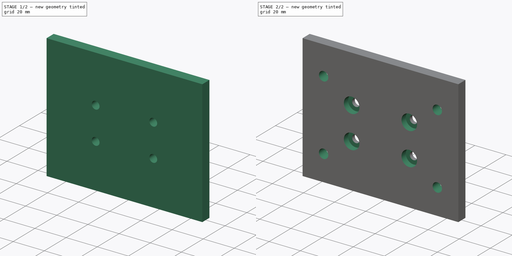
[diagram: build sequence overview — one tinted view per stage of 2, left to right]
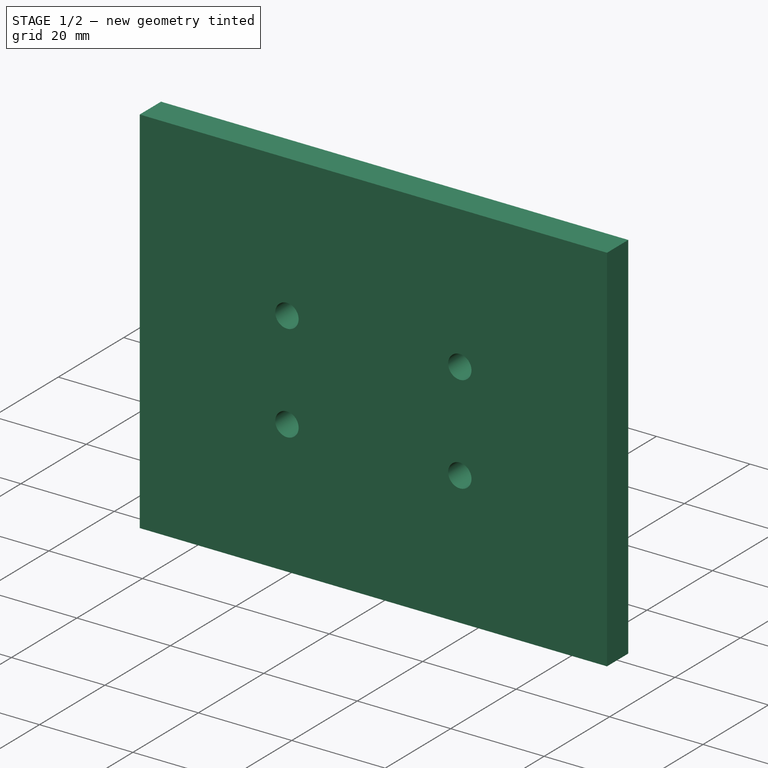
[diagram: stage 1 of 2 — iso view after this stage's code; geometry added in this stage tinted green]
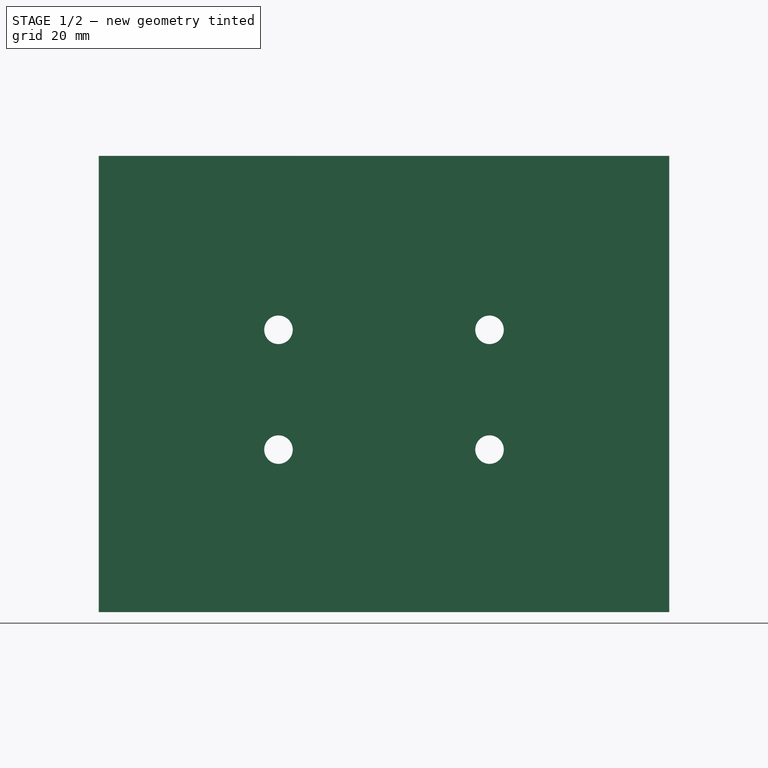
[diagram: stage 1 of 2 — front view after this stage's code; geometry added in this stage tinted green]
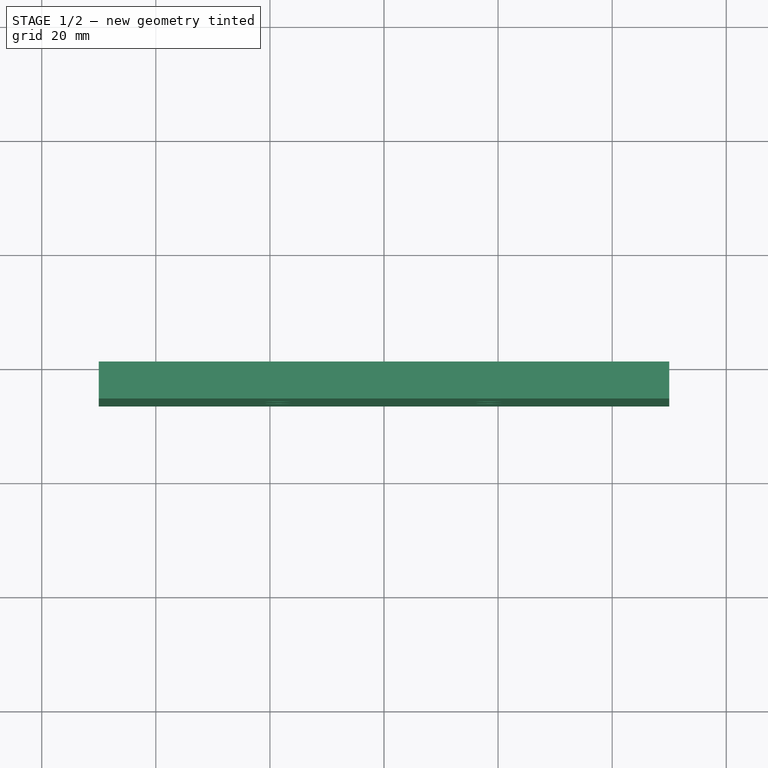
[diagram: stage 1 of 2 — top view after this stage's code; geometry added in this stage tinted green]
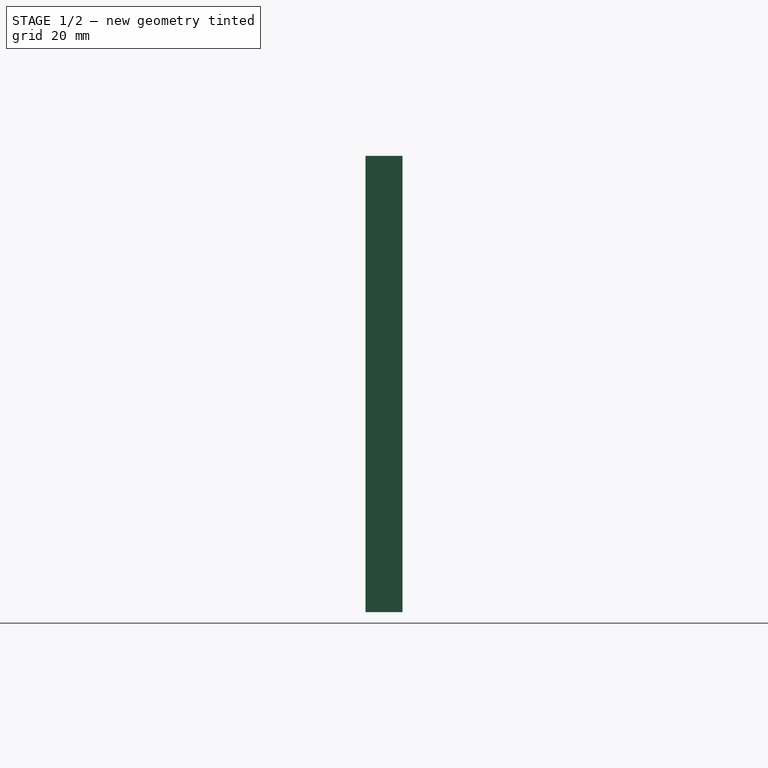
[diagram: stage 1 of 2 — right view after this stage's code; geometry added in this stage tinted green]
FCSTD DOCUMENT  (FreeCAD 0.15R4671 (Git))
Label: holder_ballnut_gantry
License: CC-BY 3.0
LicenseURL: http://creativecommons.org/licenses/by/3.0/
objects: Drawing::FeatureViewPython×12, Sketcher::SketchObject×4, PartDesign::Pocket×3, PartDesign::Pad×1, Drawing::FeatureViewPart×1, Drawing::FeaturePage×1
note: 12 computed .brp shape members not serialized (recipe doc carries the construction recipe); baked Part::Feature solids carry a one-line shape summary decoded from their .brp

FEATURE [Sketcher::SketchObject] Sketch001
  Placement = pos=(0,0,0) rot=(1,0,0;1.5708rad)
  sketch-geometry (4):
    g0: LineSegment StartX=-50 StartY=60.5 StartZ=0 EndX=50 EndY=60.5 EndZ=0
    g1: LineSegment StartX=50 StartY=60.5 StartZ=0 EndX=50 EndY=-19.5 EndZ=0
    g2: LineSegment StartX=50 StartY=-19.5 StartZ=0 EndX=-50 EndY=-19.5 EndZ=0
    g3: LineSegment StartX=-50 StartY=-19.5 StartZ=0 EndX=-50 EndY=60.5 EndZ=0
  constraints (12):
    c: Coincident(g0,g1)
    c: Coincident(g1,g2)
    c: Coincident(g2,g3)
    c: Coincident(g3,g0)
    c: Horizontal(g0)
    c: Horizontal(g2)
    c: Vertical(g1)
    c: Vertical(g3)
    c: DistanceY(g1,g0) = 80
    c: DistanceX(g2,g1) = 100
    c: DistanceX(g-1,g2) = -50
    c: Distance(g-1,g2) = 19.5
FEATURE [PartDesign::Pad] Pad
  Length = 6.5
  Length2 = 792
  Placement = pos=(0,0,0) rot=(1,0,0;1.5708rad)
  Sketch = -> Sketch001
  Type = 0
FEATURE [Sketcher::SketchObject] Sketch004
  Placement = pos=(0,0,0) rot=(-1,0,0;1.5708rad)
  Support = -> Pad [Face5]
  sketch-geometry (4):
    g0: Circle CenterX=-18.5 CenterY=-9 CenterZ=0 NormalX=0 NormalY=0 NormalZ=1 Radius=2.5
    g1: Circle CenterX=18.5 CenterY=-9 CenterZ=0 NormalX=0 NormalY=0 NormalZ=1 Radius=2.5
    g2: Circle CenterX=-18.5 CenterY=-30 CenterZ=0 NormalX=0 NormalY=0 NormalZ=1 Radius=2.5
    g3: Circle CenterX=18.5 CenterY=-30 CenterZ=0 NormalX=0 NormalY=0 NormalZ=1 Radius=2.5
  constraints (12):
    c: Radius(g0) = 2.5
    c: DistanceY(g-1,g0) = -9
    c: DistanceX(g-2,g0) = -18.5
    c: Radius(g1) = 2.5
    c: DistanceY(g-1,g1) = -9
    c: Radius(g2) = 2.5
    c: DistanceX(g-2,g2) = -18.5
    c: DistanceX(g-2,g1) = 18.5
    c: Radius(g3) = 2.5
    c: DistanceX(g-2,g3) = 18.5
    c: DistanceY(g-1,g3) = -30
    c: DistanceY(g-1,g2) = -30
FEATURE [PartDesign::Pocket] Pocket
  Length = 10
  Placement = pos=(0,0,0) rot=(1,0,0;1.5708rad)
  Sketch = -> Sketch004
  Type = 0
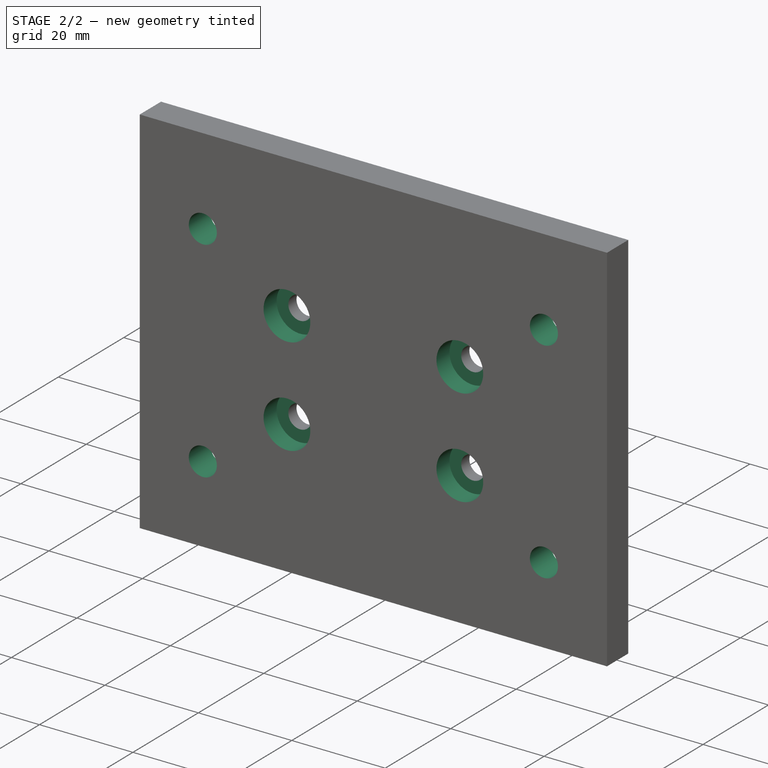
[diagram: stage 2 of 2 — iso view after this stage's code; geometry added in this stage tinted green]
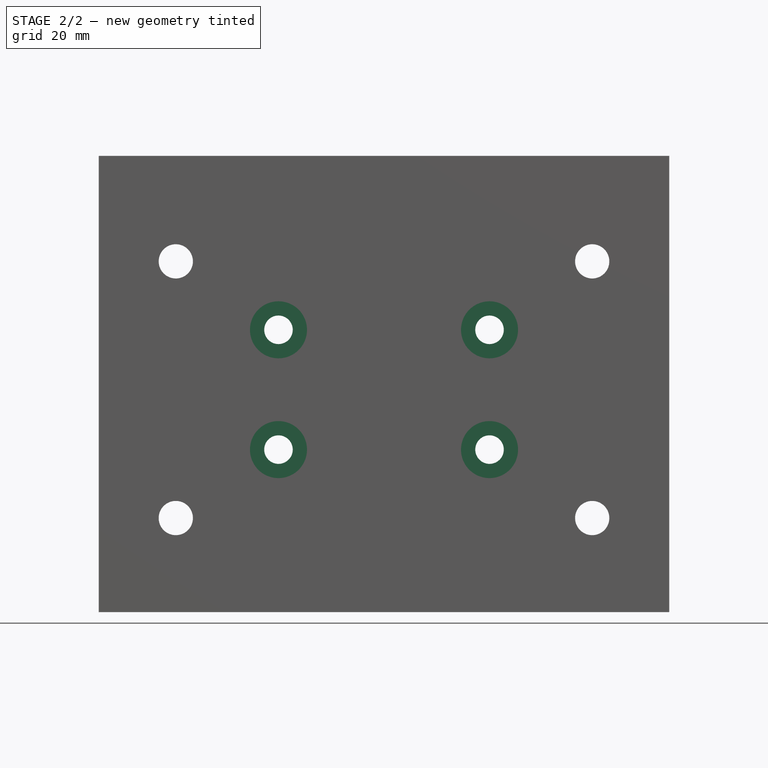
[diagram: stage 2 of 2 — front view after this stage's code; geometry added in this stage tinted green]
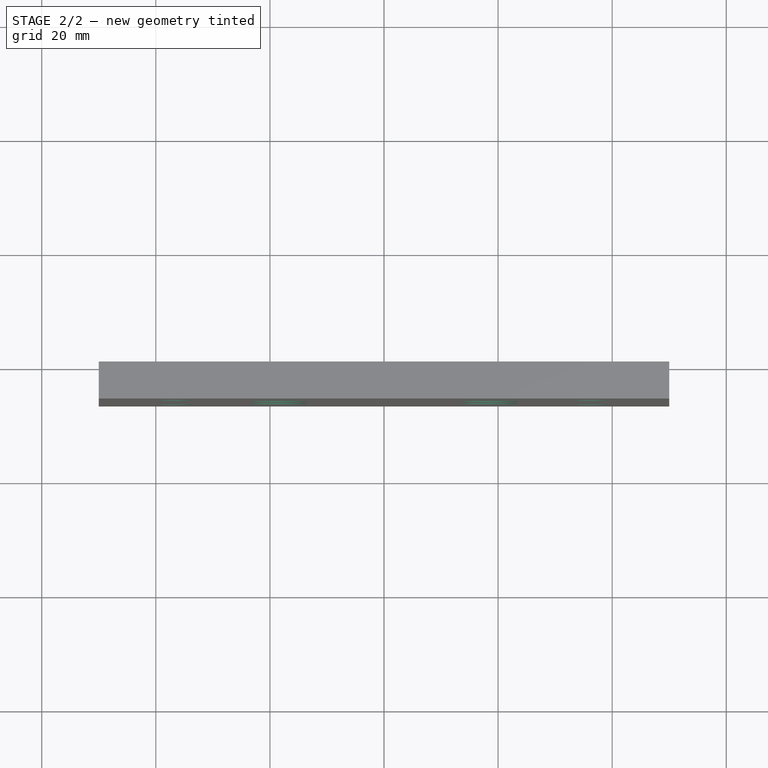
[diagram: stage 2 of 2 — top view after this stage's code; geometry added in this stage tinted green]
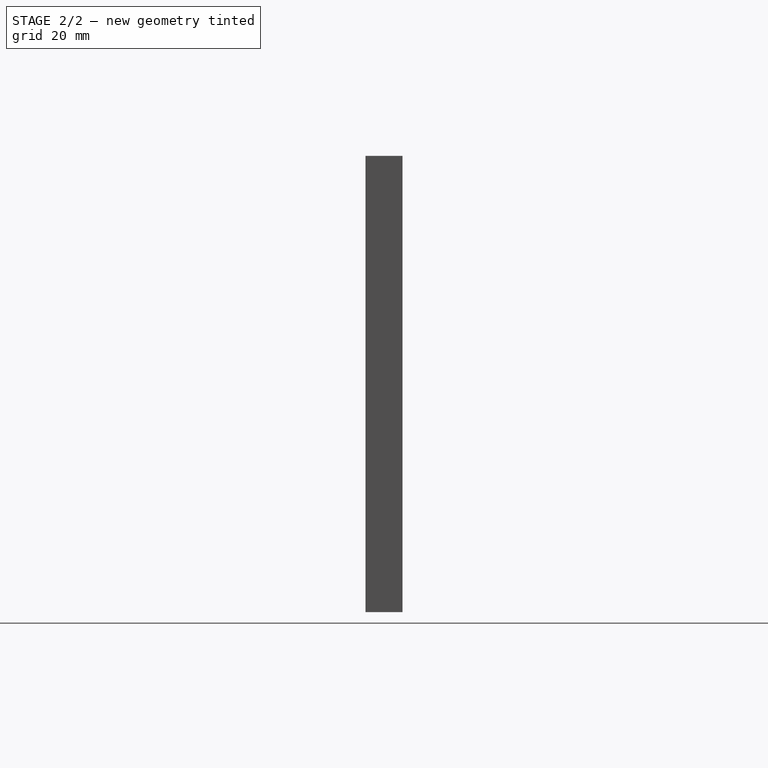
[diagram: stage 2 of 2 — right view after this stage's code; geometry added in this stage tinted green]
FEATURE [Sketcher::SketchObject] Sketch
  Placement = pos=(0,-6.5,0) rot=(1,0,0;1.5708rad)
  Support = -> Pocket [Face5]
  sketch-geometry (4):
    g0: Circle CenterX=18.5 CenterY=9 CenterZ=0 NormalX=0 NormalY=0 NormalZ=1 Radius=5
    g1: Circle CenterX=18.5 CenterY=30 CenterZ=0 NormalX=0 NormalY=0 NormalZ=1 Radius=5
    g2: Circle CenterX=-18.5 CenterY=9 CenterZ=0 NormalX=0 NormalY=0 NormalZ=1 Radius=5
    g3: Circle CenterX=-18.5 CenterY=30 CenterZ=0 NormalX=0 NormalY=0 NormalZ=1 Radius=5
  constraints (12):
    c: Radius(g0) = 5
    c: DistanceY(g-1,g0) = 9
    c: DistanceX(g-1,g0) = 18.5
    c: Radius(g1) = 5
    c: DistanceY(g-1,g1) = 30
    c: DistanceX(g-1,g1) = 18.5
    c: Radius(g2) = 5
    c: DistanceY(g-1,g2) = 9
    c: DistanceX(g-1,g2) = -18.5
    c: Radius(g3) = 5
    c: DistanceX(g-1,g3) = -18.5
    c: DistanceY(g-1,g3) = 30
FEATURE [PartDesign::Pocket] Pocket001
  Length = 4
  Placement = pos=(0,0,0) rot=(1,0,0;1.5708rad)
  Sketch = -> Sketch
  Type = 0
FEATURE [Sketcher::SketchObject] Sketch005
  Placement = pos=(0,-6.5,0) rot=(1,0,0;1.5708rad)
  Support = -> Pocket001 [Face5]
  sketch-geometry (4):
    g0: Circle CenterX=36.5 CenterY=-3 CenterZ=0 NormalX=0 NormalY=0 NormalZ=1 Radius=3
    g1: Circle CenterX=36.5 CenterY=42 CenterZ=0 NormalX=0 NormalY=0 NormalZ=1 Radius=3
    g2: Circle CenterX=-36.5 CenterY=-3 CenterZ=0 NormalX=0 NormalY=0 NormalZ=1 Radius=3
    g3: Circle CenterX=-36.5 CenterY=42 CenterZ=0 NormalX=0 NormalY=0 NormalZ=1 Radius=3
  constraints (12):
    c: Radius(g0) = 3
    c: DistanceX(g-1,g0) = 36.5
    c: DistanceY(g-1,g0) = -3
    c: Radius(g1) = 3
    c: DistanceX(g-1,g1) = 36.5
    c: DistanceY(g-1,g1) = 42
    c: Radius(g2) = 3
    c: DistanceX(g-1,g2) = -36.5
    c: DistanceY(g-1,g2) = -3
    c: Radius(g3) = 3
    c: DistanceX(g-1,g3) = -36.5
    c: DistanceY(g-1,g3) = 42
FEATURE [PartDesign::Pocket] Pocket002
  Length = 10
  Placement = pos=(0,0,0) rot=(1,0,0;1.5708rad)
  Sketch = -> Sketch005
  Type = 0
FEATURE [Drawing::FeatureViewPart] Ortho  label="Ortho_0_0"
  Direction = (0,0,-1)
  HiddenWidth = 0.15
  LineWidth = 0.35
  Rotation = 180
  Scale = 2
  ShowHiddenLines = true
  ShowSmoothLines = false
  Source = -> Pocket002
  Tolerance = 0.05
  ViewResult = <blob: 15162 chars omitted>
  Visible = true
  X = 148.5
  Y = 88
FEATURE [Drawing::FeatureViewPython] dim001  # drawing view (typed FeaturePython)
  Rotation = 0
  ViewResult = <g> \n  <line x1="48.500000" y1="90.000000" x2="48.500000" y2="112.092430" style="stroke:rgb(0,0,255);stroke-width:0.50" />\n<line x1="248.500000" y1="90.000000" x2="248.500000" y2="112.092430" style="stroke:rgb(0,0,255);stroke-width:0.50" />\n<line x1="48.500000" y1="111.092430" x2="248.500000" y2="111.092430" style="stroke:rgb(0,0,255);stroke-width:0.50" /> \n  <polygon points="248.500000,111.092430 245.500000,110.092430 244.500000,111.092430 245.500000,112.092430" style="fill:rgb(0,0,255);stroke:rgb(0,0,255);stroke-width:0" /><polygon points="48.500000,111.092430 51.500000,112.092430 52.500000,111.092430 51.500000,110.092430" style="fill:rgb(0,0,255);stroke:rgb(0,0,255);stroke-width:0" /> \n  <text x="148.500000" y="109.092430" font-family="inherit" font-size="3.6" fill="rgb(0,0,255)" text-anchor="middle" transform="rotate(-0.000000 148.500000,109.092430)" >100</text> </g>
  Visible = true
  X = 0
  Y = 0
  arrowL1 = 3
  arrowL2 = 1
  arrowW = 2
  arrow_scheme = 0
  autoPlaceOffset = 2
  autoPlaceText = true
  click1_x = 250.122
  click1_y = 111.092
  click2_x = 250.122
  click2_y = 111.092
  comma_decimal_place = false
  dimension_line_overshoot = 1
  gap_datum_points = 2
  halfDimension_linear = false
  lineColor = rgb(0,0,255)
  strokeWidth = 0.5
  textFormat_linear = %(value)3.3f
  textRenderer_color = rgb(0,0,255)
  textRenderer_family = inherit
  textRenderer_size = 3.6
  unit_custom_scale = 1
  unit_scheme = 0
FEATURE [Drawing::FeatureViewPython] dim002  # drawing view (typed FeaturePython)
  Rotation = 0
  ViewResult = <g> \n  <line x1="46.500000" y1="75.000000" x2="34.825665" y2="75.000000" style="stroke:rgb(0,0,255);stroke-width:0.50" />\n<line x1="46.500000" y1="88.000000" x2="34.825665" y2="88.000000" style="stroke:rgb(0,0,255);stroke-width:0.50" />\n<line x1="35.825665" y1="75.000000" x2="35.825665" y2="88.000000" style="stroke:rgb(0,0,255);stroke-width:0.50" /> \n  <polygon points="35.825665,88.000000 36.825665,85.000000 35.825665,84.000000 34.825665,85.000000" style="fill:rgb(0,0,255);stroke:rgb(0,0,255);stroke-width:0" /><polygon points="35.825665,75.000000 34.825665,78.000000 35.825665,79.000000 36.825665,78.000000" style="fill:rgb(0,0,255);stroke:rgb(0,0,255);stroke-width:0" /> \n  <text x="33.825665" y="81.500000" font-family="inherit" font-size="3.6" fill="rgb(0,0,255)" text-anchor="middle" transform="rotate(-90.000000 33.825665,81.500000)" >6.5</text> </g>
  Visible = true
  X = 0
  Y = 0
  arrowL1 = 3
  arrowL2 = 1
  arrowW = 2
  arrow_scheme = 0
  autoPlaceOffset = 2
  autoPlaceText = true
  click1_x = 35.8257
  click1_y = 92.6866
  click2_x = 35.8257
  click2_y = 92.6866
  comma_decimal_place = false
  dimension_line_overshoot = 1
  gap_datum_points = 2
  halfDimension_linear = false
  lineColor = rgb(0,0,255)
  strokeWidth = 0.5
  textFormat_linear = %(value)3.3f
  textRenderer_color = rgb(0,0,255)
  textRenderer_family = inherit
  textRenderer_size = 3.6
  unit_custom_scale = 1
  unit_scheme = 0
FEATURE [Drawing::FeatureViewPython] dim003  # drawing view (typed FeaturePython)
  Rotation = 0
  ViewResult = <g> \n  <line x1="101.500000" y1="73.000000" x2="101.500000" y2="63.678462" style="stroke:rgb(0,0,255);stroke-width:0.50" />\n<line x1="121.500000" y1="73.000000" x2="121.500000" y2="63.678462" style="stroke:rgb(0,0,255);stroke-width:0.50" />\n<line x1="101.500000" y1="64.678462" x2="121.500000" y2="64.678462" style="stroke:rgb(0,0,255);stroke-width:0.50" /> \n  <polygon points="121.500000,64.678462 118.500000,63.678462 117.500000,64.678462 118.500000,65.678462" style="fill:rgb(0,0,255);stroke:rgb(0,0,255);stroke-width:0" /><polygon points="101.500000,64.678462 104.500000,65.678462 105.500000,64.678462 104.500000,63.678462" style="fill:rgb(0,0,255);stroke:rgb(0,0,255);stroke-width:0" /> \n  <text x="111.500000" y="62.678462" font-family="inherit" font-size="3.6" fill="rgb(0,0,255)" text-anchor="middle" transform="rotate(0.000000 111.500000,62.678462)" >10</text> </g>
  Visible = true
  X = 0
  Y = 0
  arrowL1 = 3
  arrowL2 = 1
  arrowW = 2
  arrow_scheme = 0
  autoPlaceOffset = 2
  autoPlaceText = true
  click1_x = 124.582
  click1_y = 64.6785
  click2_x = 124.582
  click2_y = 64.6785
  comma_decimal_place = false
  dimension_line_overshoot = 1
  gap_datum_points = 2
  halfDimension_linear = false
  lineColor = rgb(0,0,255)
  strokeWidth = 0.5
  textFormat_linear = %(value)3.3f
  textRenderer_color = rgb(0,0,255)
  textRenderer_family = inherit
  textRenderer_size = 3.6
  unit_custom_scale = 1
  unit_scheme = 0
FEATURE [Drawing::FeatureViewPython] dim004  # drawing view (typed FeaturePython)
  Rotation = 0
  ViewResult = <g> \n  <line x1="175.500000" y1="73.000000" x2="175.500000" y2="63.759539" style="stroke:rgb(0,0,255);stroke-width:0.50" />\n<line x1="195.500000" y1="73.000000" x2="195.500000" y2="63.759539" style="stroke:rgb(0,0,255);stroke-width:0.50" />\n<line x1="175.500000" y1="64.759539" x2="195.500000" y2="64.759539" style="stroke:rgb(0,0,255);stroke-width:0.50" /> \n  <polygon points="195.500000,64.759539 192.500000,63.759539 191.500000,64.759539 192.500000,65.759539" style="fill:rgb(0,0,255);stroke:rgb(0,0,255);stroke-width:0" /><polygon points="175.500000,64.759539 178.500000,65.759539 179.500000,64.759539 178.500000,63.759539" style="fill:rgb(0,0,255);stroke:rgb(0,0,255);stroke-width:0" /> \n  <text x="185.500000" y="62.759539" font-family="inherit" font-size="3.6" fill="rgb(0,0,255)" text-anchor="middle" transform="rotate(0.000000 185.500000,62.759539)" >10</text> </g>
  Visible = true
  X = 0
  Y = 0
  arrowL1 = 3
  arrowL2 = 1
  arrowW = 2
  arrow_scheme = 0
  autoPlaceOffset = 2
  autoPlaceText = true
  click1_x = 189.05
  click1_y = 64.7595
  click2_x = 189.05
  click2_y = 64.7595
  comma_decimal_place = false
  dimension_line_overshoot = 1
  gap_datum_points = 2
  halfDimension_linear = false
  lineColor = rgb(0,0,255)
  strokeWidth = 0.5
  textFormat_linear = %(value)3.3f
  textRenderer_color = rgb(0,0,255)
  textRenderer_family = inherit
  textRenderer_size = 3.6
  unit_custom_scale = 1
  unit_scheme = 0
FEATURE [Drawing::FeatureViewPython] dim005  # drawing view (typed FeaturePython)
  Rotation = 0
  ViewResult = <g> \n  <line x1="69.500000" y1="73.000000" x2="69.500000" y2="63.285614" style="stroke:rgb(0,0,255);stroke-width:0.50" />\n<line x1="81.500000" y1="73.000000" x2="81.500000" y2="63.285614" style="stroke:rgb(0,0,255);stroke-width:0.50" />\n<line x1="69.500000" y1="64.285614" x2="81.500000" y2="64.285614" style="stroke:rgb(0,0,255);stroke-width:0.50" /> \n  <polygon points="81.500000,64.285614 78.500000,63.285614 77.500000,64.285614 78.500000,65.285614" style="fill:rgb(0,0,255);stroke:rgb(0,0,255);stroke-width:0" /><polygon points="69.500000,64.285614 72.500000,65.285614 73.500000,64.285614 72.500000,63.285614" style="fill:rgb(0,0,255);stroke:rgb(0,0,255);stroke-width:0" /> \n  <text x="75.500000" y="62.285614" font-family="inherit" font-size="3.6" fill="rgb(0,0,255)" text-anchor="middle" transform="rotate(0.000000 75.500000,62.285614)" >6</text> </g>
  Visible = true
  X = 0
  Y = 0
  arrowL1 = 3
  arrowL2 = 1
  arrowW = 2
  arrow_scheme = 0
  autoPlaceOffset = 2
  autoPlaceText = true
  click1_x = 80.4143
  click1_y = 64.2856
  click2_x = 80.4143
  click2_y = 64.2856
  comma_decimal_place = false
  dimension_line_overshoot = 1
  gap_datum_points = 2
  halfDimension_linear = false
  lineColor = rgb(0,0,255)
  strokeWidth = 0.5
  textFormat_linear = %(value)3.3f
  textRenderer_color = rgb(0,0,255)
  textRenderer_family = inherit
  textRenderer_size = 3.6
  unit_custom_scale = 1
  unit_scheme = 0
FEATURE [Drawing::FeatureViewPython] dim006  # drawing view (typed FeaturePython)
  Rotation = 0
  ViewResult = <g> \n  <line x1="215.500000" y1="73.000000" x2="215.500000" y2="63.796257" style="stroke:rgb(0,0,255);stroke-width:0.50" />\n<line x1="227.500000" y1="73.000000" x2="227.500000" y2="63.796257" style="stroke:rgb(0,0,255);stroke-width:0.50" />\n<line x1="215.500000" y1="64.796257" x2="227.500000" y2="64.796257" style="stroke:rgb(0,0,255);stroke-width:0.50" /> \n  <polygon points="227.500000,64.796257 224.500000,63.796257 223.500000,64.796257 224.500000,65.796257" style="fill:rgb(0,0,255);stroke:rgb(0,0,255);stroke-width:0" /><polygon points="215.500000,64.796257 218.500000,65.796257 219.500000,64.796257 218.500000,63.796257" style="fill:rgb(0,0,255);stroke:rgb(0,0,255);stroke-width:0" /> \n  <text x="221.500000" y="62.796257" font-family="inherit" font-size="3.6" fill="rgb(0,0,255)" text-anchor="middle" transform="rotate(0.000000 221.500000,62.796257)" >6</text> </g>
  Visible = true
  X = 0
  Y = 0
  arrowL1 = 3
  arrowL2 = 1
  arrowW = 2
  arrow_scheme = 0
  autoPlaceOffset = 2
  autoPlaceText = true
  click1_x = 224.08
  click1_y = 64.7963
  click2_x = 224.08
  click2_y = 64.7963
  comma_decimal_place = false
  dimension_line_overshoot = 1
  gap_datum_points = 2
  halfDimension_linear = false
  lineColor = rgb(0,0,255)
  strokeWidth = 0.5
  textFormat_linear = %(value)3.3f
  textRenderer_color = rgb(0,0,255)
  textRenderer_family = inherit
  textRenderer_size = 3.6
  unit_custom_scale = 1
  unit_scheme = 0
FEATURE [Drawing::FeatureViewPython] dim007  # drawing view (typed FeaturePython)
  Rotation = 0
  ViewResult = <g> \n  <line x1="123.500000" y1="75.000000" x2="132.970274" y2="75.000000" style="stroke:rgb(0,0,255);stroke-width:0.50" />\n<line x1="123.500000" y1="83.000000" x2="132.970274" y2="83.000000" style="stroke:rgb(0,0,255);stroke-width:0.50" />\n<line x1="131.970274" y1="75.000000" x2="131.970274" y2="83.000000" style="stroke:rgb(0,0,255);stroke-width:0.50" /> \n  <polygon points="131.970274,83.000000 130.970274,86.000000 131.970274,87.000000 132.970274,86.000000" style="fill:rgb(0,0,255);stroke:rgb(0,0,255);stroke-width:0" /><polygon points="131.970274,75.000000 132.970274,72.000000 131.970274,71.000000 130.970274,72.000000" style="fill:rgb(0,0,255);stroke:rgb(0,0,255);stroke-width:0" /> \n  <text x="129.970274" y="79.000000" font-family="inherit" font-size="3.6" fill="rgb(0,0,255)" text-anchor="middle" transform="rotate(-90.000000 129.970274,79.000000)" >4</text> </g>
  Visible = true
  X = 0
  Y = 0
  arrowL1 = 3
  arrowL2 = 1
  arrowW = 2
  arrow_scheme = 0
  autoPlaceOffset = 2
  autoPlaceText = true
  click1_x = 131.97
  click1_y = 80.5622
  click2_x = 131.97
  click2_y = 80.5622
  comma_decimal_place = false
  dimension_line_overshoot = 1
  gap_datum_points = 2
  halfDimension_linear = false
  lineColor = rgb(0,0,255)
  strokeWidth = 0.5
  textFormat_linear = %(value)3.3f
  textRenderer_color = rgb(0,0,255)
  textRenderer_family = inherit
  textRenderer_size = 3.6
  unit_custom_scale = 1
  unit_scheme = 0
FEATURE [Drawing::FeatureViewPython] dim008  # drawing view (typed FeaturePython)
  Rotation = 0
  ViewResult = <g> \n  <line x1="173.500000" y1="75.000000" x2="165.644816" y2="75.000000" style="stroke:rgb(0,0,255);stroke-width:0.50" />\n<line x1="173.500000" y1="83.000000" x2="165.644816" y2="83.000000" style="stroke:rgb(0,0,255);stroke-width:0.50" />\n<line x1="166.644816" y1="75.000000" x2="166.644816" y2="83.000000" style="stroke:rgb(0,0,255);stroke-width:0.50" /> \n  <polygon points="166.644816,83.000000 165.644816,86.000000 166.644816,87.000000 167.644816,86.000000" style="fill:rgb(0,0,255);stroke:rgb(0,0,255);stroke-width:0" /><polygon points="166.644816,75.000000 167.644816,72.000000 166.644816,71.000000 165.644816,72.000000" style="fill:rgb(0,0,255);stroke:rgb(0,0,255);stroke-width:0" /> \n  <text x="164.644816" y="79.000000" font-family="inherit" font-size="3.6" fill="rgb(0,0,255)" text-anchor="middle" transform="rotate(-90.000000 164.644816,79.000000)" >4</text> </g>
  Visible = true
  X = 0
  Y = 0
  arrowL1 = 3
  arrowL2 = 1
  arrowW = 2
  arrow_scheme = 0
  autoPlaceOffset = 2
  autoPlaceText = true
  click1_x = 166.645
  click1_y = 81.7698
  click2_x = 166.645
  click2_y = 81.7698
  comma_decimal_place = false
  dimension_line_overshoot = 1
  gap_datum_points = 2
  halfDimension_linear = false
  lineColor = rgb(0,0,255)
  strokeWidth = 0.5
  textFormat_linear = %(value)3.3f
  textRenderer_color = rgb(0,0,255)
  textRenderer_family = inherit
  textRenderer_size = 3.6
  unit_custom_scale = 1
  unit_scheme = 0
FEATURE [Drawing::FeatureViewPython] dim009  # drawing view (typed FeaturePython)
  Rotation = 0
  ViewResult = <g> \n  <line x1="104.500000" y1="88.000000" x2="92.542830" y2="88.000000" style="stroke:rgb(0,0,255);stroke-width:0.50" />\n<line x1="99.500000" y1="83.000000" x2="92.542830" y2="83.000000" style="stroke:rgb(0,0,255);stroke-width:0.50" />\n<line x1="93.542830" y1="88.000000" x2="93.542830" y2="83.000000" style="stroke:rgb(0,0,255);stroke-width:0.50" /> \n  <polygon points="93.542830,83.000000 94.542830,80.000000 93.542830,79.000000 92.542830,80.000000" style="fill:rgb(0,0,255);stroke:rgb(0,0,255);stroke-width:0" /><polygon points="93.542830,88.000000 92.542830,91.000000 93.542830,92.000000 94.542830,91.000000" style="fill:rgb(0,0,255);stroke:rgb(0,0,255);stroke-width:0" /> \n  <text x="91.542830" y="85.500000" font-family="inherit" font-size="3.6" fill="rgb(0,0,255)" text-anchor="middle" transform="rotate(-90.000000 91.542830,85.500000)" >2.5</text> </g>
  Visible = true
  X = 0
  Y = 0
  arrowL1 = 3
  arrowL2 = 1
  arrowW = 2
  arrow_scheme = 0
  autoPlaceOffset = 2
  autoPlaceText = true
  click1_x = 93.5428
  click1_y = 85.3539
  click2_x = 93.5428
  click2_y = 85.3539
  comma_decimal_place = false
  dimension_line_overshoot = 1
  gap_datum_points = 2
  halfDimension_linear = false
  lineColor = rgb(0,0,255)
  strokeWidth = 0.5
  textFormat_linear = %(value)3.3f
  textRenderer_color = rgb(0,0,255)
  textRenderer_family = inherit
  textRenderer_size = 3.6
  unit_custom_scale = 1
  unit_scheme = 0
FEATURE [Drawing::FeatureViewPython] dim010  # drawing view (typed FeaturePython)
  Rotation = 0
  ViewResult = <g> \n  <line x1="197.500000" y1="83.000000" x2="205.196828" y2="83.000000" style="stroke:rgb(0,0,255);stroke-width:0.50" />\n<line x1="192.500000" y1="88.000000" x2="205.196828" y2="88.000000" style="stroke:rgb(0,0,255);stroke-width:0.50" />\n<line x1="204.196828" y1="83.000000" x2="204.196828" y2="88.000000" style="stroke:rgb(0,0,255);stroke-width:0.50" /> \n  <polygon points="204.196828,88.000000 203.196828,91.000000 204.196828,92.000000 205.196828,91.000000" style="fill:rgb(0,0,255);stroke:rgb(0,0,255);stroke-width:0" /><polygon points="204.196828,83.000000 205.196828,80.000000 204.196828,79.000000 203.196828,80.000000" style="fill:rgb(0,0,255);stroke:rgb(0,0,255);stroke-width:0" /> \n  <text x="202.196828" y="85.500000" font-family="inherit" font-size="3.6" fill="rgb(0,0,255)" text-anchor="middle" transform="rotate(-90.000000 202.196828,85.500000)" >2.5</text> </g>
  Visible = true
  X = 0
  Y = 0
  arrowL1 = 3
  arrowL2 = 1
  arrowW = 2
  arrow_scheme = 0
  autoPlaceOffset = 2
  autoPlaceText = true
  click1_x = 204.197
  click1_y = 85.2559
  click2_x = 204.197
  click2_y = 85.2559
  comma_decimal_place = false
  dimension_line_overshoot = 1
  gap_datum_points = 2
  halfDimension_linear = false
  lineColor = rgb(0,0,255)
  strokeWidth = 0.5
  textFormat_linear = %(value)3.3f
  textRenderer_color = rgb(0,0,255)
  textRenderer_family = inherit
  textRenderer_size = 3.6
  unit_custom_scale = 1
  unit_scheme = 0
FEATURE [Drawing::FeatureViewPython] dim011  # drawing view (typed FeaturePython)
  Rotation = 0
  ViewResult = <g> \n  <line x1="106.500000" y1="90.000000" x2="106.500000" y2="96.810940" style="stroke:rgb(0,0,255);stroke-width:0.50" />\n<line x1="116.500000" y1="90.000000" x2="116.500000" y2="96.810940" style="stroke:rgb(0,0,255);stroke-width:0.50" />\n<line x1="106.500000" y1="95.810940" x2="116.500000" y2="95.810940" style="stroke:rgb(0,0,255);stroke-width:0.50" /> \n  <polygon points="116.500000,95.810940 119.500000,96.810940 120.500000,95.810940 119.500000,94.810940" style="fill:rgb(0,0,255);stroke:rgb(0,0,255);stroke-width:0" /><polygon points="106.500000,95.810940 103.500000,94.810940 102.500000,95.810940 103.500000,96.810940" style="fill:rgb(0,0,255);stroke:rgb(0,0,255);stroke-width:0" /> \n  <text x="111.500000" y="93.810940" font-family="inherit" font-size="3.6" fill="rgb(0,0,255)" text-anchor="middle" transform="rotate(0.000000 111.500000,93.810940)" >5</text> </g>
  Visible = true
  X = 0
  Y = 0
  arrowL1 = 3
  arrowL2 = 1
  arrowW = 2
  arrow_scheme = 0
  autoPlaceOffset = 2
  autoPlaceText = true
  click1_x = 122.391
  click1_y = 95.8109
  click2_x = 122.391
  click2_y = 95.8109
  comma_decimal_place = false
  dimension_line_overshoot = 1
  gap_datum_points = 2
  halfDimension_linear = false
  lineColor = rgb(0,0,255)
  strokeWidth = 0.5
  textFormat_linear = %(value)3.3f
  textRenderer_color = rgb(0,0,255)
  textRenderer_family = inherit
  textRenderer_size = 3.6
  unit_custom_scale = 1
  unit_scheme = 0
FEATURE [Drawing::FeatureViewPython] dim012  # drawing view (typed FeaturePython)
  Rotation = 0
  ViewResult = <g> \n  <line x1="180.500000" y1="90.000000" x2="180.500000" y2="96.583764" style="stroke:rgb(0,0,255);stroke-width:0.50" />\n<line x1="190.500000" y1="90.000000" x2="190.500000" y2="96.583764" style="stroke:rgb(0,0,255);stroke-width:0.50" />\n<line x1="180.500000" y1="95.583764" x2="190.500000" y2="95.583764" style="stroke:rgb(0,0,255);stroke-width:0.50" /> \n  <polygon points="190.500000,95.583764 193.500000,96.583764 194.500000,95.583764 193.500000,94.583764" style="fill:rgb(0,0,255);stroke:rgb(0,0,255);stroke-width:0" /><polygon points="180.500000,95.583764 177.500000,94.583764 176.500000,95.583764 177.500000,96.583764" style="fill:rgb(0,0,255);stroke:rgb(0,0,255);stroke-width:0" /> \n  <text x="185.500000" y="93.583764" font-family="inherit" font-size="3.6" fill="rgb(0,0,255)" text-anchor="middle" transform="rotate(0.000000 185.500000,93.583764)" >5</text> </g>
  Visible = true
  X = 0
  Y = 0
  arrowL1 = 3
  arrowL2 = 1
  arrowW = 2
  arrow_scheme = 0
  autoPlaceOffset = 2
  autoPlaceText = true
  click1_x = 186.746
  click1_y = 95.5838
  click2_x = 186.746
  click2_y = 95.5838
  comma_decimal_place = false
  dimension_line_overshoot = 1
  gap_datum_points = 2
  halfDimension_linear = false
  lineColor = rgb(0,0,255)
  strokeWidth = 0.5
  textFormat_linear = %(value)3.3f
  textRenderer_color = rgb(0,0,255)
  textRenderer_family = inherit
  textRenderer_size = 3.6
  unit_custom_scale = 1
  unit_scheme = 0
FEATURE [Drawing::FeaturePage] Page
  EditableTexts = Designed by Name | Date | Scale | Weight | Title | Subtitle | Drawing number | Sheet
  Group = -> [Ortho,dim001,dim002,dim003,dim004,dim005,dim006,dim007,dim008,dim009,dim010,dim011,dim012]
  Template = <path>
note: 1 file-system path scrubbed to <path> (originals preserved in the JSON sidecar)
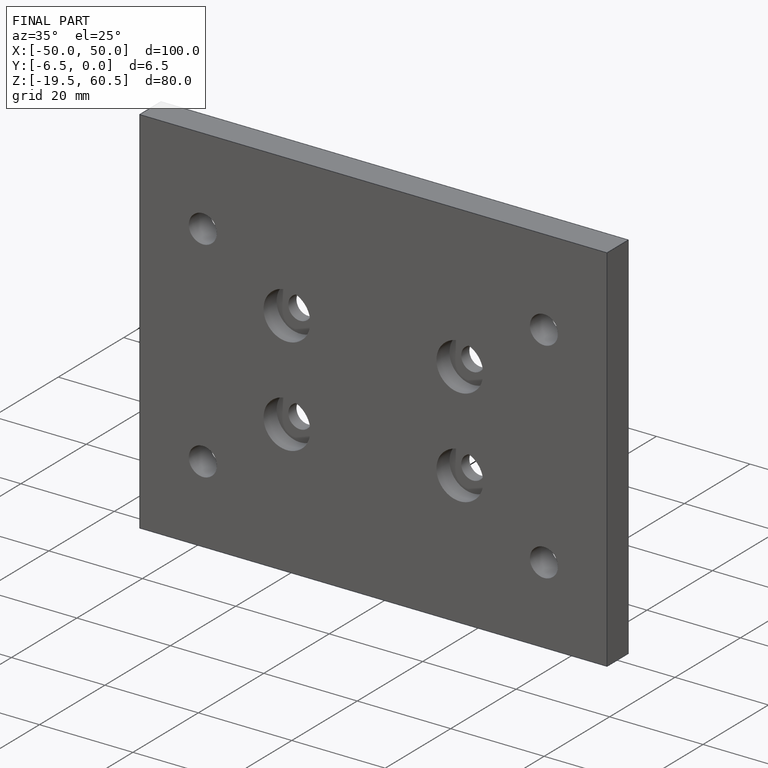
[diagram: finished part — iso view with bounding-box wireframe]
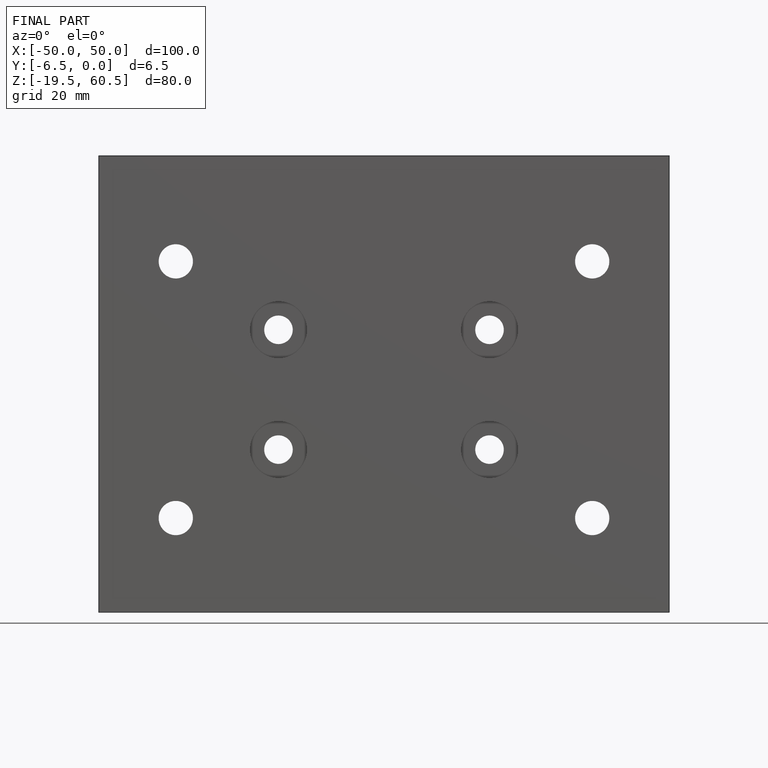
[diagram: finished part — front view with bounding-box wireframe]
